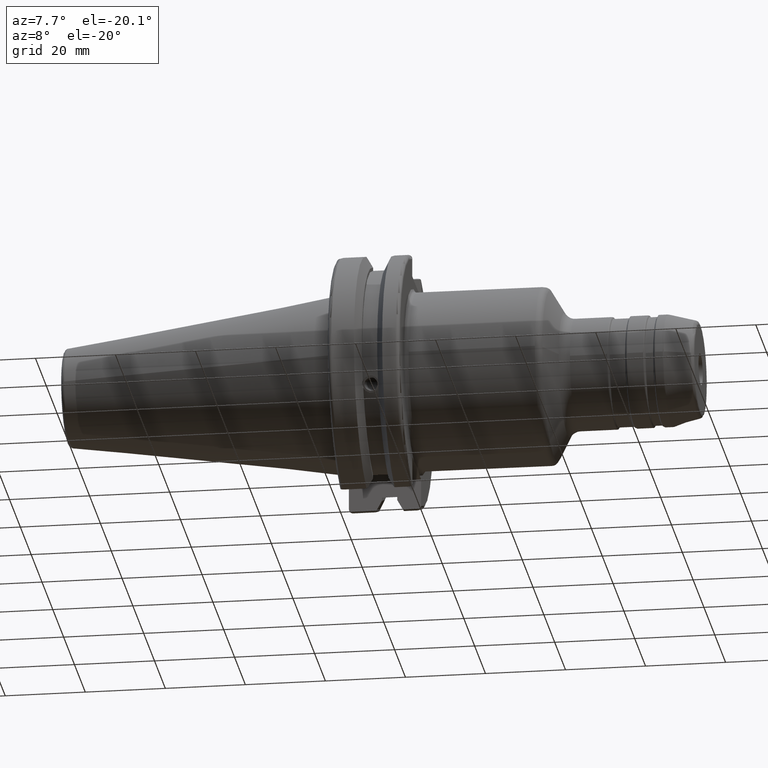
[diagram: clean part render]
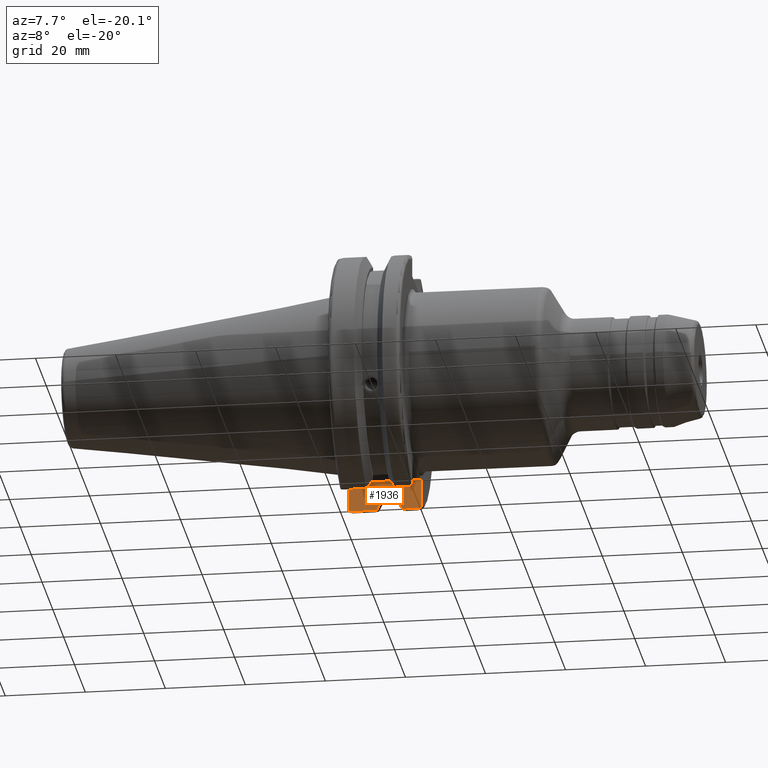
[diagram: same view with one face highlighted and labeled with its STEP entity id]
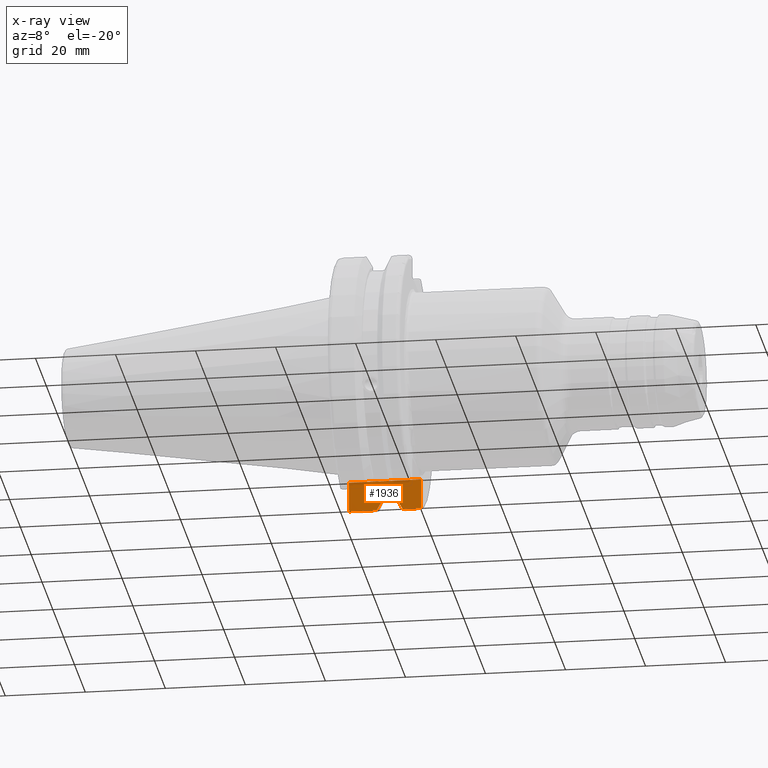
[diagram: x-ray of the same camera — body ghosted, the highlighted face saturated]
A machine part, auxiliary view. The second image highlights one B-rep face of the part: STEP entity #1936.
The next image is the same camera in x-ray: the body ghosted, the highlighted face saturated — about 5% of this face is hidden behind the body in this view.
In plain terms, the highlighted planar face has unit normal (-0, 1, 0).
Its self-contained STEP definition (entity closure, byte-faithful):
#19=(
BOUNDED_CURVE()
B_SPLINE_CURVE(2,(#3436,#3437,#3438),.UNSPECIFIED.,.F.,.F.)
B_SPLINE_CURVE_WITH_KNOTS((3,3),(0.,0.276549142795978),.UNSPECIFIED.)
CURVE()
GEOMETRIC_REPRESENTATION_ITEM()
RATIONAL_B_SPLINE_CURVE((1.,1.00095203903289,1.00031614444804))
REPRESENTATION_ITEM('')
);
#29=(
BOUNDED_CURVE()
B_SPLINE_CURVE(2,(#3741,#3742,#3743),.UNSPECIFIED.,.F.,.F.)
B_SPLINE_CURVE_WITH_KNOTS((3,3),(0.0550586467392263,0.331607789535849),
 .UNSPECIFIED.)
CURVE()
GEOMETRIC_REPRESENTATION_ITEM()
RATIONAL_B_SPLINE_CURVE((1.00031614444967,1.00095203903781,1.))
REPRESENTATION_ITEM('')
);
#89=PLANE('',#2200);
#119=B_SPLINE_CURVE_WITH_KNOTS('',3,(#3496,#3497,#3498,#3499,#3500,#3501),
 .UNSPECIFIED.,.F.,.F.,(4,2,4),(0.452741154494498,0.491581665024871,0.505824174364157),
 .UNSPECIFIED.);
#133=B_SPLINE_CURVE_WITH_KNOTS('',3,(#3701,#3702,#3703,#3704,#3705,#3706),
 .UNSPECIFIED.,.F.,.F.,(4,2,4),(0.0977210450333167,0.111963554372601,0.150804064902975),
 .UNSPECIFIED.);
#209=LINE('',#3457,#304);
#210=LINE('',#3461,#305);
#211=LINE('',#3465,#306);
#217=LINE('',#3524,#312);
#243=LINE('',#3668,#338);
#248=LINE('',#3709,#343);
#254=LINE('',#3739,#349);
#255=LINE('',#3744,#350);
#304=VECTOR('',#2621,10.);
#305=VECTOR('',#2626,10.);
#306=VECTOR('',#2631,10.);
#312=VECTOR('',#2663,10.);
#338=VECTOR('',#2713,10.);
#343=VECTOR('',#2728,10.);
#349=VECTOR('',#2764,10.);
#350=VECTOR('',#2765,10.);
#462=FACE_OUTER_BOUND('',#582,.T.);
#582=EDGE_LOOP('',(#1711,#1712,#1713,#1714,#1715,#1716,#1717,#1718,#1719,
#1720,#1721,#1722));
#862=VERTEX_POINT('',#3433);
#863=VERTEX_POINT('',#3435);
#868=VERTEX_POINT('',#3455);
#869=VERTEX_POINT('',#3459);
#870=VERTEX_POINT('',#3463);
#878=VERTEX_POINT('',#3493);
#879=VERTEX_POINT('',#3495);
#882=VERTEX_POINT('',#3522);
#913=VERTEX_POINT('',#3665);
#914=VERTEX_POINT('',#3667);
#920=VERTEX_POINT('',#3692);
#927=VERTEX_POINT('',#3740);
#1111=EDGE_CURVE('',#862,#863,#19,.T.);
#1118=EDGE_CURVE('',#868,#862,#209,.T.);
#1120=EDGE_CURVE('',#869,#868,#210,.T.);
#1122=EDGE_CURVE('',#870,#869,#211,.T.);
#1133=EDGE_CURVE('',#878,#879,#119,.T.);
#1138=EDGE_CURVE('',#882,#878,#217,.T.);
#1182=EDGE_CURVE('',#913,#914,#243,.T.);
#1191=EDGE_CURVE('',#920,#913,#133,.T.);
#1193=EDGE_CURVE('',#863,#920,#248,.T.);
#1206=EDGE_CURVE('',#882,#914,#254,.T.);
#1207=EDGE_CURVE('',#927,#870,#29,.T.);
#1208=EDGE_CURVE('',#879,#927,#255,.T.);
#1711=ORIENTED_EDGE('',*,*,#1133,.F.);
#1712=ORIENTED_EDGE('',*,*,#1138,.F.);
#1713=ORIENTED_EDGE('',*,*,#1206,.T.);
#1714=ORIENTED_EDGE('',*,*,#1182,.F.);
#1715=ORIENTED_EDGE('',*,*,#1191,.F.);
#1716=ORIENTED_EDGE('',*,*,#1193,.F.);
#1717=ORIENTED_EDGE('',*,*,#1111,.F.);
#1718=ORIENTED_EDGE('',*,*,#1118,.F.);
#1719=ORIENTED_EDGE('',*,*,#1120,.F.);
#1720=ORIENTED_EDGE('',*,*,#1122,.F.);
#1721=ORIENTED_EDGE('',*,*,#1207,.F.);
#1722=ORIENTED_EDGE('',*,*,#1208,.F.);
#1936=ADVANCED_FACE('',(#462),#89,.F.);
#2200=AXIS2_PLACEMENT_3D('',#3738,#2762,#2763);
#2621=DIRECTION('',(0.,0.,-1.));
#2626=DIRECTION('',(-1.,0.,0.));
#2631=DIRECTION('',(0.,0.,1.));
#2663=DIRECTION('',(0.,0.,-1.));
#2713=DIRECTION('',(0.,0.,1.));
#2728=DIRECTION('',(-1.,-1.16558847729675E-16,0.));
#2762=DIRECTION('center_axis',(-1.16558847729675E-16,1.,0.));
#2763=DIRECTION('ref_axis',(1.,1.16558847729675E-16,0.));
#2764=DIRECTION('',(-1.,-1.16558847729675E-16,0.));
#2765=DIRECTION('',(-1.,-1.16558847729675E-16,0.));
#3433=CARTESIAN_POINT('',(9.261,8.19,-27.7771386827498));
#3435=CARTESIAN_POINT('',(7.92858530351256,8.19,-30.1755016258903));
#3436=CARTESIAN_POINT('Ctrl Pts',(9.261,8.19,-27.7771386827498));
#3437=CARTESIAN_POINT('Ctrl Pts',(8.62236356152209,8.19,-28.9303689539738));
#3438=CARTESIAN_POINT('Ctrl Pts',(7.92858530351256,8.19,-30.1755016258903));
#3455=CARTESIAN_POINT('',(9.261,8.19,-26.932255754021));
#3457=CARTESIAN_POINT('',(9.261,8.18999999999999,-11.3));
#3459=CARTESIAN_POINT('',(13.091,8.19,-26.932255754021));
#3461=CARTESIAN_POINT('',(11.176,8.19,-26.932255754021));
#3463=CARTESIAN_POINT('',(13.091,8.19,-27.7771386827498));
#3465=CARTESIAN_POINT('',(13.091,8.19,-11.3));
#3493=CARTESIAN_POINT('',(19.05,8.19,-29.6392712461019));
#3495=CARTESIAN_POINT('',(18.9058722749097,8.19,-30.1755016258903));
#3496=CARTESIAN_POINT('Ctrl Pts',(19.05,8.19,-29.6392712461019));
#3497=CARTESIAN_POINT('Ctrl Pts',(19.05,8.19,-29.7687396145364));
#3498=CARTESIAN_POINT('Ctrl Pts',(19.020485567083,8.19,-29.9212724384851));
#3499=CARTESIAN_POINT('Ctrl Pts',(18.9539643471756,8.19,-30.0852355256475));
#3500=CARTESIAN_POINT('Ctrl Pts',(18.9318163728133,8.19,-30.131014531546));
#3501=CARTESIAN_POINT('Ctrl Pts',(18.9058722749097,8.19,-30.1755016258903));
#3522=CARTESIAN_POINT('',(19.05,8.19,-22.6));
#3524=CARTESIAN_POINT('',(19.05,8.19,-11.3));
#3665=CARTESIAN_POINT('',(1.,8.18999999999999,-29.6392712461019));
#3667=CARTESIAN_POINT('',(0.999999999999998,8.19,-22.6));
#3668=CARTESIAN_POINT('',(1.,8.18999999999999,-11.3));
#3692=CARTESIAN_POINT('',(1.14412772509028,8.19,-30.1755016258903));
#3701=CARTESIAN_POINT('Ctrl Pts',(1.14412772509028,8.19,-30.1755016258903));
#3702=CARTESIAN_POINT('Ctrl Pts',(1.11818362718666,8.19,-30.131014531546));
#3703=CARTESIAN_POINT('Ctrl Pts',(1.09603565282437,8.19,-30.0852355256475));
#3704=CARTESIAN_POINT('Ctrl Pts',(1.02951443291695,8.19,-29.9212724384851));
#3705=CARTESIAN_POINT('Ctrl Pts',(1.,8.19,-29.7687396145364));
#3706=CARTESIAN_POINT('Ctrl Pts',(1.,8.19,-29.6392712461019));
#3709=CARTESIAN_POINT('',(4.32491661546218,8.19,-30.1755016258903));
#3738=CARTESIAN_POINT('Origin',(0.999999999999999,8.19,-22.6));
#3739=CARTESIAN_POINT('',(20.05,8.19,-22.6));
#3740=CARTESIAN_POINT('',(14.4234146964874,8.19,-30.1755016258903));
#3741=CARTESIAN_POINT('Ctrl Pts',(14.4234146964874,8.19,-30.1755016258903));
#3742=CARTESIAN_POINT('Ctrl Pts',(13.7296364384731,8.19,-28.9303689539651));
#3743=CARTESIAN_POINT('Ctrl Pts',(13.091,8.19,-27.7771386827498));
#3744=CARTESIAN_POINT('',(16.8760833845378,8.19,-30.1755016258903));